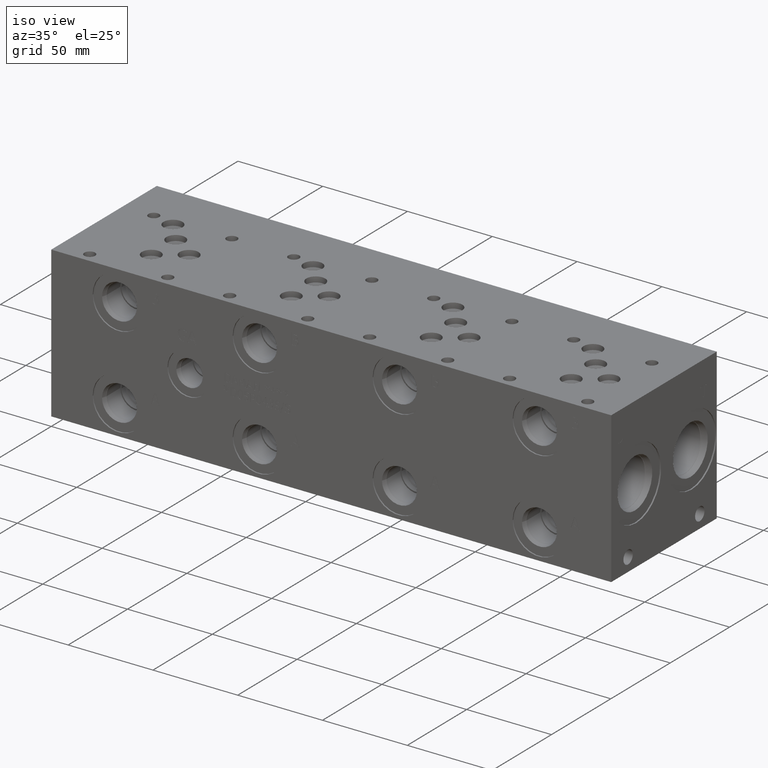
[diagram: clean part render]
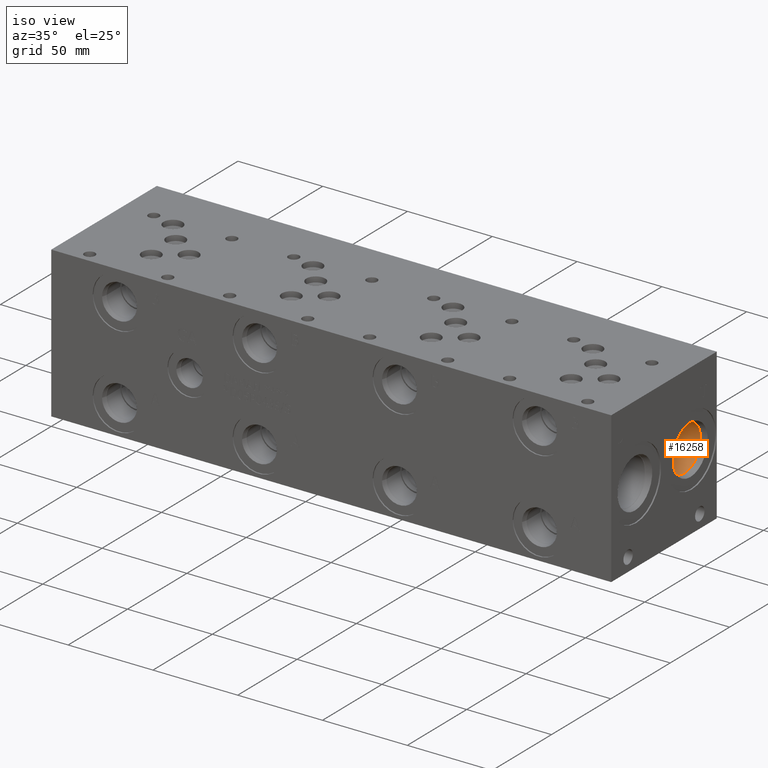
[diagram: same view with one face highlighted and labeled with its STEP entity id]
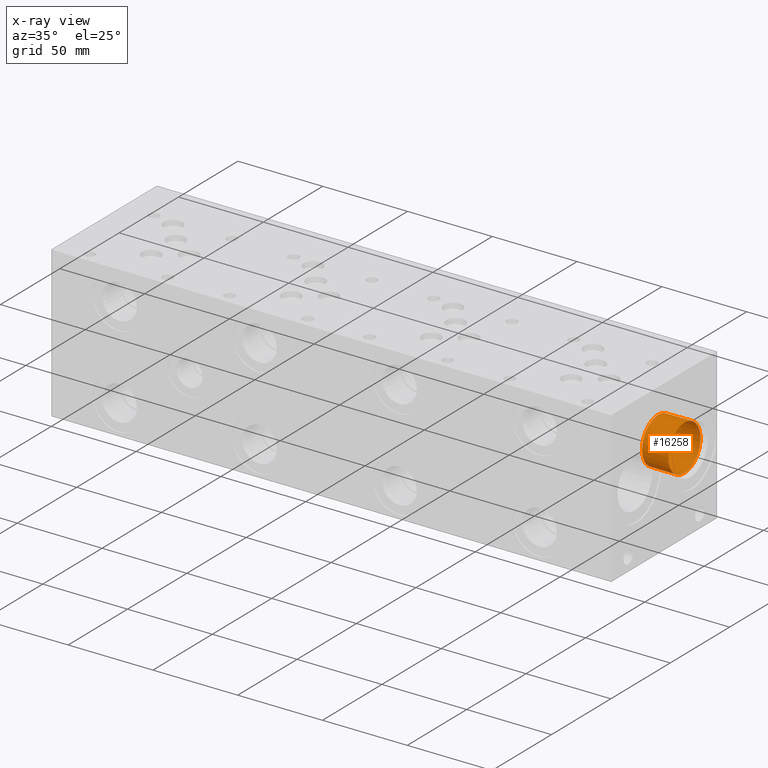
[diagram: x-ray of the same camera — body ghosted, the highlighted face saturated]
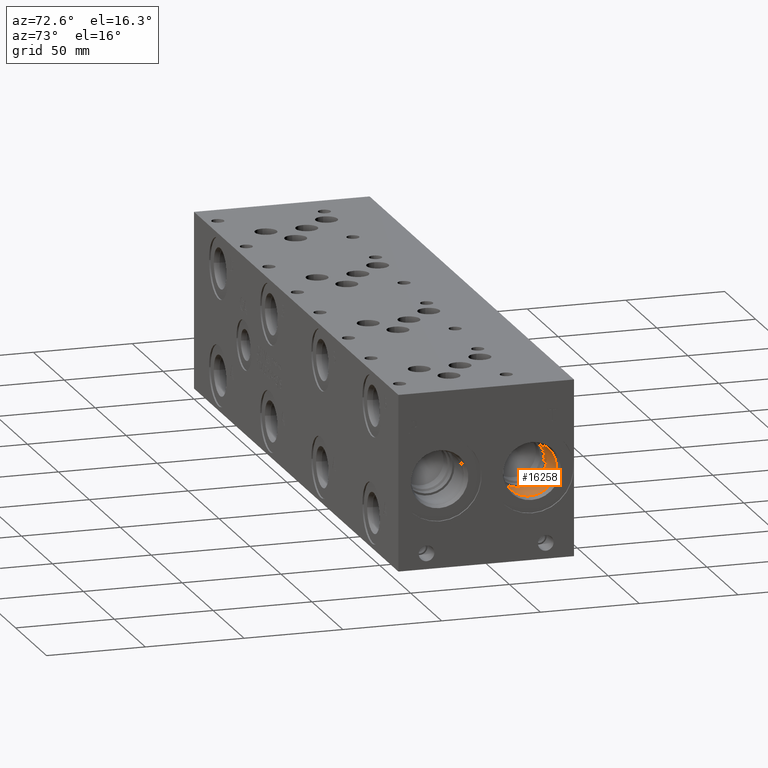
[diagram: same view with one face highlighted and labeled with its STEP entity id]
A machine part, iso view. The second image highlights one B-rep face of the part: STEP entity #16258.
The next image is the same camera in x-ray: the body ghosted, the highlighted face saturated — about 0% of this face is hidden behind the body in this view.
A second angle (auxiliary view) of the same face is appended — the face is thin or edge-on in the first view.
In plain terms, the highlighted cylindrical surface (bore or boss wall) has radius 13.5001 mm, axis along (1, 0, 0).
Its self-contained STEP definition (entity closure, byte-faithful):
#117=CYLINDRICAL_SURFACE('',#17018,13.5001);
#298=CIRCLE('',#16988,13.5001);
#299=CIRCLE('',#16989,13.5001);
#315=CIRCLE('',#17015,13.5001);
#316=CIRCLE('',#17016,13.5001);
#2073=FACE_OUTER_BOUND('',#3011,.T.);
#3011=EDGE_LOOP('',(#13389,#13390,#13391,#13392,#13393,#13394));
#4552=LINE('',#27397,#5970);
#5970=VECTOR('',#19880,13.5001);
#7300=VERTEX_POINT('',#27335);
#7301=VERTEX_POINT('',#27337);
#7319=VERTEX_POINT('',#27390);
#7320=VERTEX_POINT('',#27391);
#9435=EDGE_CURVE('',#7301,#7300,#298,.T.);
#9436=EDGE_CURVE('',#7300,#7301,#299,.T.);
#9460=EDGE_CURVE('',#7319,#7320,#315,.T.);
#9461=EDGE_CURVE('',#7320,#7319,#316,.T.);
#9463=EDGE_CURVE('',#7301,#7320,#4552,.T.);
#13389=ORIENTED_EDGE('',*,*,#9435,.T.);
#13390=ORIENTED_EDGE('',*,*,#9436,.T.);
#13391=ORIENTED_EDGE('',*,*,#9463,.T.);
#13392=ORIENTED_EDGE('',*,*,#9460,.F.);
#13393=ORIENTED_EDGE('',*,*,#9461,.F.);
#13394=ORIENTED_EDGE('',*,*,#9463,.F.);
#16258=ADVANCED_FACE('',(#2073),#117,.F.);
#16988=AXIS2_PLACEMENT_3D('',#27338,#19810,#19811);
#16989=AXIS2_PLACEMENT_3D('',#27339,#19812,#19813);
#17015=AXIS2_PLACEMENT_3D('',#27392,#19872,#19873);
#17016=AXIS2_PLACEMENT_3D('',#27393,#19874,#19875);
#17018=AXIS2_PLACEMENT_3D('',#27396,#19878,#19879);
#19810=DIRECTION('center_axis',(1.,0.,0.));
#19811=DIRECTION('ref_axis',(0.,1.,0.));
#19812=DIRECTION('center_axis',(1.,0.,0.));
#19813=DIRECTION('ref_axis',(0.,1.,0.));
#19872=DIRECTION('center_axis',(1.,0.,0.));
#19873=DIRECTION('ref_axis',(0.,1.,0.));
#19874=DIRECTION('center_axis',(1.,0.,0.));
#19875=DIRECTION('ref_axis',(0.,1.,0.));
#19878=DIRECTION('center_axis',(1.,0.,0.));
#19879=DIRECTION('ref_axis',(0.,1.,0.));
#19880=DIRECTION('',(-1.,0.,0.));
#27335=CARTESIAN_POINT('',(325.9201,67.818,57.9501));
#27337=CARTESIAN_POINT('',(325.9201,54.3179,44.45));
#27338=CARTESIAN_POINT('Origin',(325.9201,67.818,44.45));
#27339=CARTESIAN_POINT('Origin',(325.9201,67.818,44.45));
#27390=CARTESIAN_POINT('',(310.3626,81.3181,44.45));
#27391=CARTESIAN_POINT('',(310.3626,54.3179,44.45));
#27392=CARTESIAN_POINT('Origin',(310.3626,67.818,44.45));
#27393=CARTESIAN_POINT('Origin',(310.3626,67.818,44.45));
#27396=CARTESIAN_POINT('Origin',(320.2813,67.818,44.45));
#27397=CARTESIAN_POINT('',(320.2813,54.3179,44.45));